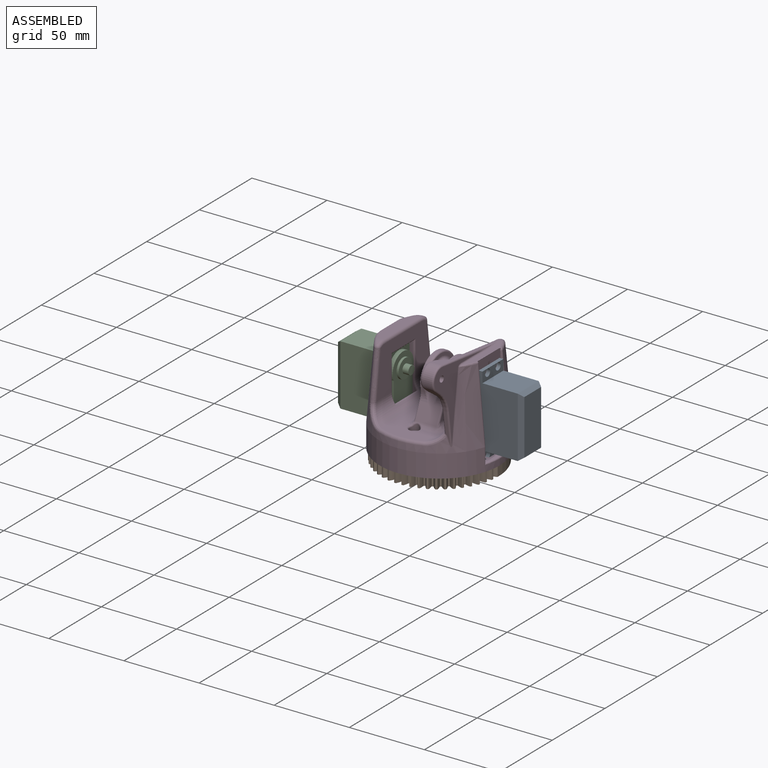
[diagram: assembled view]
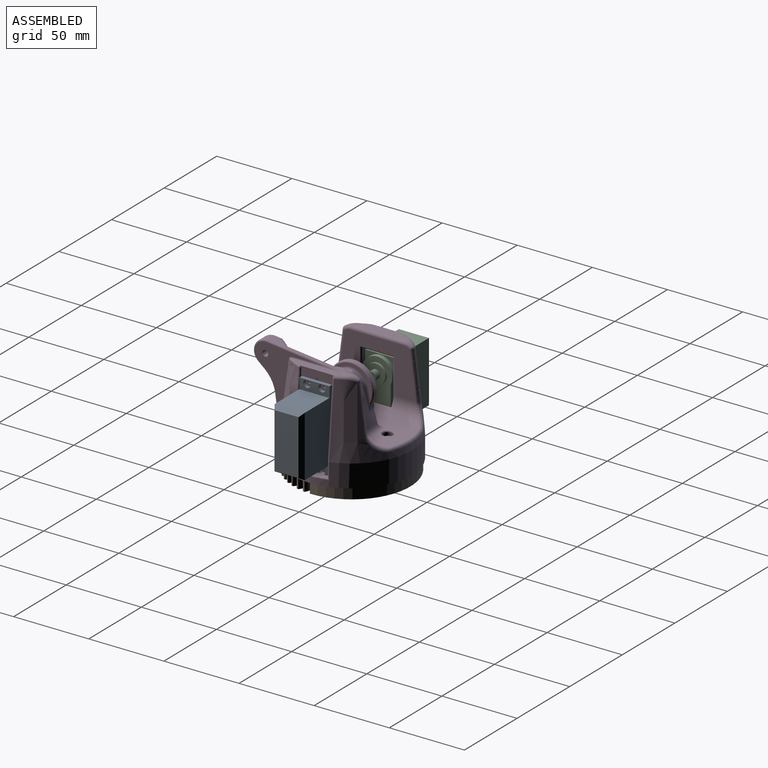
[diagram: assembled view, second angle]
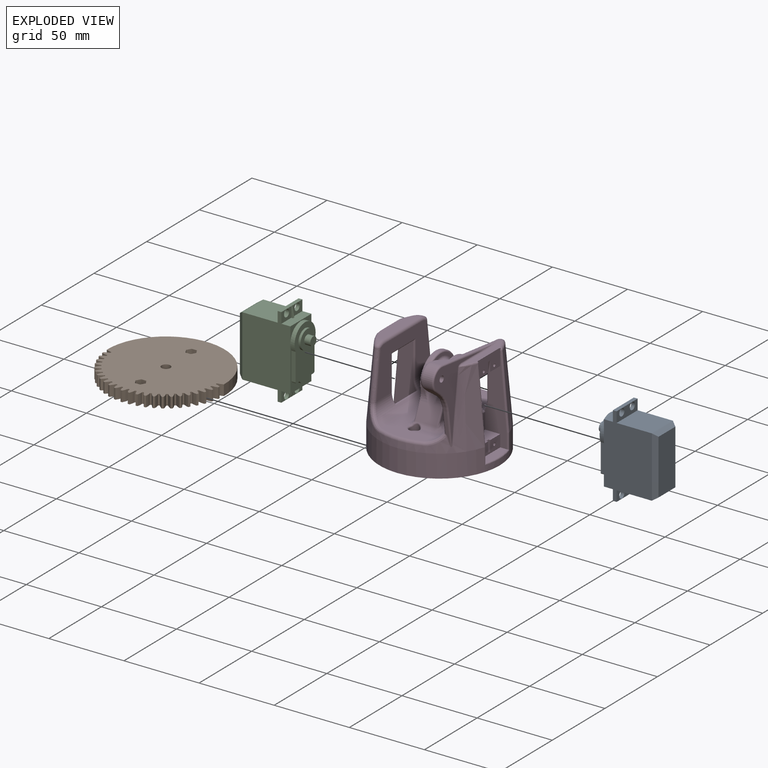
[diagram: exploded view]
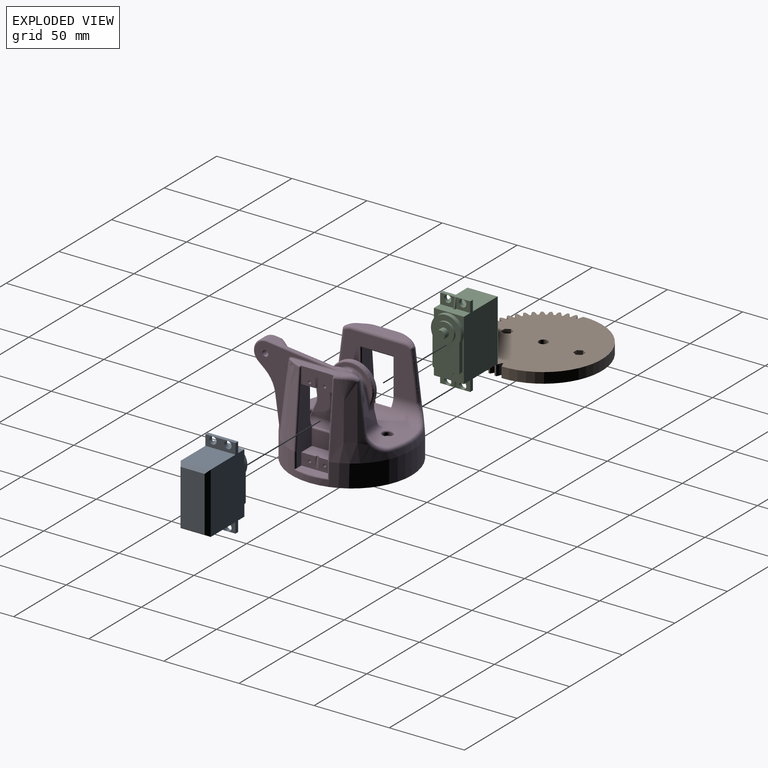
[diagram: exploded view, second angle]
ASSEMBLY  parts=3 mates=2
PART A: 44 faces, bbox 54.5x20x43.3 mm
  f0: plane 54.5x32mm, normal (0,1,0), area 1331mm2, adj f1,f3,f7,f9,f17,f19,f20,f22
  f1: plane 23.5x20mm, normal (1,0,0), area 470mm2, adj f0,f2,f5,f9
  f2: plane 54.5x32mm, normal (0,-1,0), area 1331mm2, adj f1,f3,f6,f9,f17,f19,f20,f21
  f3: plane 23.5x20mm, normal (-1,0,0), area 470mm2, adj f0,f2,f8,f24
  f4: plane 36.5x16mm, normal (0,0,-1), area 584mm2, adj f5,f6,f7,f8
  f5: plane 20x3mm, normal (0.83,0,-0.55), area 64.9mm2, adj f1,f4,f6,f7
  f6: plane 40.5x3mm, normal (0,-0.83,-0.55), area 138.8mm2, adj f2,f4,f5,f8
  f7: plane 40.5x3mm, normal (0,0.83,-0.55), area 138.8mm2, adj f0,f4,f5,f8
  f8: plane 20x3mm, normal (-0.83,0,-0.55), area 64.9mm2, adj f3,f4,f6,f7
  f9: plane 20x7mm, normal (0,0,-1), area 103.8mm2, adj f0,f1,f2,f12,f15,f26
  f10: cylinder r=6.4mm len=12.8mm, axis (0,0,-1), area 60.3mm2, adj f16,f41
  f11: cylinder r=10mm len=20mm, axis (0,0,-1), area 113.9mm2, adj f16,f17,f19,f35,f36
  f12: cylinder r=2.4mm len=4.8mm, axis (0,0,1), area 37.7mm2, adj f9,f23
  f13: cylinder r=2.4mm len=4.8mm, axis (0,0,1), area 37.7mm2, adj f21,f24
  f14: cylinder r=2.4mm len=4.8mm, axis (0,0,1), area 37.7mm2, adj f24,f27
  f15: cylinder r=2.4mm len=4.8mm, axis (0,0,1), area 37.7mm2, adj f9,f25
  f16: plane 33.73x20mm, normal (0,0,1), area 459.1mm2, adj f10,f11,f18,f35,f36,f39,f40
  f17: plane 30x20mm, normal (0,0,1), area 149.4mm2, adj f0,f2,f11,f18,f20,f35,f36,f37
  f18: plane 15.9x2.8mm, normal (-1,0,0), area 23mm2, adj f16,f17,f37,f38,f39,f40
  f19: plane 20x10.5mm, normal (0,0,1), area 52.9mm2, adj f0,f2,f11,f22
  f20: plane 20x6mm, normal (-1,0,0), area 118.6mm2, adj f0,f2,f17,f21,f27,f32,f33,f34
  f21: plane 9.4x7mm, normal (0,0,1), area 47.7mm2, adj f2,f13,f20,f28,f33
  f22: plane 20x6mm, normal (1,0,0), area 118.6mm2, adj f0,f2,f19,f23,f25,f29,f30,f31
  f23: plane 9.4x7mm, normal (0,0,1), area 47.7mm2, adj f2,f12,f22,f26,f30
  f24: plane 20x7mm, normal (0,0,-1), area 103.8mm2, adj f0,f2,f3,f13,f14,f28
  f25: plane 9.4x7mm, normal (0,0,1), area 47.7mm2, adj f0,f15,f22,f26,f31
  f26: plane 20x2.5mm, normal (1,0,0), area 50mm2, adj f0,f2,f9,f23,f25,f29
  f27: plane 9.4x7mm, normal (0,0,1), area 47.7mm2, adj f0,f14,f20,f28,f34
  f28: plane 20x2.5mm, normal (-1,0,0), area 50mm2, adj f0,f2,f21,f24,f27,f32
  f29: plane 7x1.2mm, normal (0.17,0,0.99), area 8.5mm2, adj f22,f26,f30,f31
  f30: plane 7x1.2mm, normal (0,-1,0), area 4.2mm2, adj f22,f23,f29
  f31: plane 7x1.2mm, normal (0,1,0), area 4.2mm2, adj f22,f25,f29
  f32: plane 7x1.2mm, normal (-0.17,0,0.99), area 8.5mm2, adj f20,f28,f33,f34
  f33: plane 7x1.2mm, normal (0,-1,0), area 4.2mm2, adj f20,f21,f32
  f34: plane 7x1.2mm, normal (0,1,0), area 4.2mm2, adj f20,f27,f32
  f35: plane 18.27x2.8mm, normal (0,-1,0), area 51.2mm2, adj f11,f16,f17,f40
  f36: plane 18.27x2.8mm, normal (0,1,0), area 51.2mm2, adj f11,f16,f17,f39
  f37: cylinder r=5.18mm len=9.37mm, axis (0,0,-1), area 26.9mm2, adj f17,f18,f38
  f38: plane 9.37x2.97mm, normal (0,0,1), area 20mm2, adj f18,f37
  f39: cylinder r=1mm len=2.8mm, axis (0,0,1), area 4.4mm2, adj f16,f17,f18,f36
  f40: cylinder r=1mm len=2.8mm, axis (0,0,1), area 4.4mm2, adj f16,f17,f18,f35
  f41: plane 12.8x12.8mm, normal (0,0,1), area 101.6mm2, adj f10,f42
  f42: cylinder r=2.94mm len=5.87mm, axis (0,0,-1), area 73.8mm2, adj f41,f43
  f43: plane 5.87x5.87mm, normal (0,0,1), area 27.1mm2, adj f42
PART B: same geometry as A
PART C: 221 faces, bbox 87.7x90.7x74.5 mm
  f0: plane 24.42x12.13mm, normal (1,0,0), area 213mm2, adj f1,f20,f25,f26,f80,f109,f117,f119
  f1: plane 21x8mm, normal (0,0,-1), area 165.8mm2, adj f0,f25,f26,f204,f212,f213,f214
  f2: plane 24.54x12.13mm, normal (-1,0,0), area 213mm2, adj f3,f13,f28,f29,f70,f78,f129,f131
  f3: plane 21x8mm, normal (0,0,-1), area 165.8mm2, adj f2,f28,f29,f199,f209,f210,f211
  f4: cylinder r=4mm len=14mm, axis (-1,0,0), area 44.2mm2, adj f5,f8,f12,f165,f193
  f5: bspline ~5.52x5mm, area 19.9mm2, adj f4,f12,f159,f168,f195
  f6: cylinder r=10mm len=18.72mm, axis (1,0,0), area 97.7mm2, adj f7,f8,f140,f143
  f7: plane 21.62x14mm, normal (0,0.97,0.26), area 163.4mm2, adj f6,f135,f137,f141,f142,f155,f160,f172
  f8: plane 23.92x14mm, normal (0,-0.91,0.42), area 219.4mm2, adj f4,f6,f136,f138,f139,f144,f159,f164
  f9: plane 21x8mm, normal (-1,0,0), area 149.5mm2, adj f28,f29,f30,f31,f125,f127,f215,f216
  f10: plane 21x8mm, normal (1,0,0), area 149.5mm2, adj f23,f24,f25,f26,f121,f123,f218,f219
  f11: plane 80x80mm, normal (0,0,-1), area 4922.8mm2, adj f18,f100,f101,f102,f103,f104,f105,f187
  f12: plane 75.29x28mm, normal (0,0,1), area 1077.2mm2, adj f4,f5,f19,f21,f50,f54,f165,f168
  f13: plane 34.87x7mm, normal (0,0,1), area 209.4mm2, adj f2,f44,f45,f70,f74,f78
  f14: cone r=35.63mm half-angle=5deg, axis (0,0,-1), area 1956.8mm2, adj f18,f48,f49,f50,f51,f52,f77,f78
  f15: plane 51.5x32mm, normal (1,0,0), area 961.5mm2, adj f19,f48,f56,f73,f74,f75,f197,f199
  f16: plane 59.37x40.07mm, normal (-1,0,0), area 1210.4mm2, adj f21,f52,f57,f58,f59,f86,f87,f88
  f17: cone r=35.63mm half-angle=5deg, axis (0,0,-1), area 1902.3mm2, adj f18,f34,f35,f53,f54,f55,f56,f62
  f18: cylinder r=40mm len=80mm, axis (0,0,1), area 3243.1mm2, adj f11,f14,f17,f175,f176,f177,f182,f183
  f19: cylinder r=10mm len=69.88mm, axis (0,1,0), area 779.3mm2, adj f12,f15,f49,f55,f198,f200,f202
  f20: plane 36.51x7mm, normal (0,0,1), area 123.2mm2, adj f0,f43,f80,f88,f109,f111,f112,f113
  f21: cylinder r=10mm len=69.88mm, axis (0,-1,0), area 585.3mm2, adj f12,f16,f51,f53,f166,f167,f169,f205
  f22: plane 21x10.45mm, normal (1,0,0), area 219.5mm2, adj f23,f25,f26,f207
  f23: plane 21x10mm, normal (0,0,1), area 207.8mm2, adj f10,f22,f25,f26,f218,f219,f220
  f24: plane 21.08x6mm, normal (0,0,1), area 116mm2, adj f10,f25,f26,f175,f176,f177
  f25: plane 56.29x14.61mm, normal (0,-1,0), area 497.1mm2, adj f0,f1,f10,f22,f23,f24,f174,f175
  f26: plane 56.29x14.61mm, normal (0,1,0), area 497.1mm2, adj f0,f1,f10,f22,f23,f24,f177,f178
  f27: plane 21x10.45mm, normal (-1,0,0), area 219.5mm2, adj f28,f29,f31,f200
  f28: plane 56.29x14.61mm, normal (0,-1,0), area 497.1mm2, adj f2,f3,f9,f27,f30,f31,f184,f185
  f29: plane 56.29x14.61mm, normal (0,1,0), area 497.1mm2, adj f2,f3,f9,f27,f30,f31,f181,f182
  f30: plane 21.08x6mm, normal (0,0,1), area 116mm2, adj f9,f28,f29,f182,f183,f184
  f31: plane 21x10mm, normal (0,0,1), area 207.8mm2, adj f9,f27,f28,f29,f215,f216,f217
  f32: cylinder r=8mm len=14.13mm, axis (-1,0,0), area 128.9mm2, adj f33,f37,f68,f81
  f33: plane 53.82x6.3mm, normal (0,0.11,0.99), area 94.8mm2, adj f32,f69,f83,f85,f87,f113
  f34: plane 0.33x0.26mm, normal (0,0,-1), area 0mm2, adj f17,f35,f62
  f35: plane 2.36x0.28mm, normal (0,1,0), area 0.1mm2, adj f17,f34,f62
  f36: plane 19.35x2.72mm, normal (0,-0.99,-0.14), area 33.1mm2, adj f39,f59,f61,f63,f65
  f37: plane 6.3x4.32mm, normal (0,-0.64,-0.77), area 34.7mm2, adj f32,f39,f67,f79,f92
  f38: plane 48.42x44.17mm, normal (1,0,0), area 487.1mm2, adj f41,f62,f65,f66,f67,f68,f69,f110
  f39: cylinder r=20mm len=12.54mm, axis (1,0,0), area 35.1mm2, adj f36,f37,f57,f66,f93
  f40: plane 13.17x13.17mm, normal (-1,0,0), area 123mm2, adj f41,f79,f81,f83,f90
  f41: cylinder r=2mm len=9.3mm, axis (-1,0,0), area 116.9mm2, adj f38,f40
  f42: cone r=8mm half-angle=45deg, axis (1,0,0), area 100.4mm2, adj f85,f90,f92,f93,f95,f96,f97
  f43: cylinder r=10mm len=5.41mm, axis (1,0,0), area 8.4mm2, adj f20,f82,f86
  f44: cylinder r=10mm len=5.41mm, axis (1,0,0), area 8.4mm2, adj f13,f75,f77
  f45: cylinder r=10mm len=5.41mm, axis (1,0,0), area 8.4mm2, adj f13,f71,f73
  f46: plane 32.46x32mm, normal (-1,0,0), area 800.3mm2, adj f99,f155,f156,f157,f158,f159,f168
  f47: plane 31.95x31.2mm, normal (1,0,0), area 774.4mm2, adj f99,f160,f161,f162,f163,f164,f167
  f48: bspline ~59.2x11.96mm, area 148.6mm2, adj f14,f15,f49,f76
  f49: bspline ~15.48x14.06mm, area 74.4mm2, adj f14,f19,f48,f50
  f50: torus R=37.64mm, axis (0,0,-1), area 87.9mm2, adj f12,f14,f49,f51
  f51: bspline ~15.48x14.06mm, area 74.4mm2, adj f14,f21,f50,f52
  f52: bspline ~59.2x11.96mm, area 148.6mm2, adj f14,f16,f51,f84
  f53: bspline ~13.99x13.06mm, area 52.4mm2, adj f17,f21,f54,f58,f60,f61
  f54: torus R=37.64mm, axis (0,0,-1), area 87.9mm2, adj f12,f17,f53,f55
  f55: bspline ~15.48x14.06mm, area 74.4mm2, adj f17,f19,f54,f56
  f56: bspline ~59.2x11.96mm, area 148.6mm2, adj f15,f17,f55,f72
  f57: torus R=21mm, axis (-1,0,0), area 14.2mm2, adj f16,f39,f59,f97,f98
  f58: bspline ~4.53x3.87mm, area 1.4mm2, adj f16,f53,f60
  f59: cylinder r=1mm len=14.9mm, axis (0,-0.14,0.99), area 22.3mm2, adj f16,f36,f57,f60
  f60: bspline ~2.34x1.6mm, area 1.9mm2, adj f53,f58,f59,f61
  f61: bspline ~1.82x1.54mm, area 0.9mm2, adj f36,f53,f60,f63
  f62: bspline ~54.9x7.91mm, area 30.5mm2, adj f17,f34,f35,f38,f64,f110
  f63: bspline ~3.57x1.63mm, area 2.6mm2, adj f17,f36,f61,f64
  f64: bspline ~4.58x2.21mm, area 3.3mm2, adj f17,f62,f63,f65
  f65: cylinder r=1mm len=22.38mm, axis (0,0.14,-0.99), area 33.7mm2, adj f36,f38,f64,f66
  f66: torus R=21mm, axis (-1,0,0), area 23.4mm2, adj f38,f39,f65,f67
  f67: cylinder r=1mm len=4.97mm, axis (0,0.77,-0.64), area 8.9mm2, adj f37,f38,f66,f68
  f68: torus R=7mm, axis (-1,0,0), area 30.7mm2, adj f32,f38,f67,f69
  f69: cylinder r=1mm len=53.93mm, axis (0,-0.99,0.11), area 75.1mm2, adj f33,f38,f68,f112
  f70: torus R=33.79mm, axis (0,0,1), area 23.8mm2, adj f2,f13,f17,f71,f180
  f71: bspline ~8x5.82mm, area 16.3mm2, adj f17,f45,f70,f72
  f72: sphere r=2mm, area 8.1mm2, adj f56,f71,f73
  f73: torus R=8mm, axis (-1,0,0), area 16.6mm2, adj f15,f45,f72,f74
  f74: cylinder r=2mm len=34.87mm, axis (0,1,0), area 109.5mm2, adj f13,f15,f73,f75
  f75: torus R=8mm, axis (-1,0,0), area 16.6mm2, adj f15,f44,f74,f76
  f76: sphere r=2mm, area 8.1mm2, adj f48,f75,f77
  f77: bspline ~8x5.82mm, area 16.3mm2, adj f14,f44,f76,f78
  f78: torus R=33.79mm, axis (0,0,1), area 23.8mm2, adj f2,f13,f14,f77,f186
  f79: cylinder r=2mm len=4.3mm, axis (0,-0.77,0.64), area 12.3mm2, adj f37,f40,f81,f91
  f80: torus R=33.79mm, axis (0,0,1), area 23.8mm2, adj f0,f14,f20,f82,f173
  f81: torus R=6mm, axis (-1,0,0), area 58.4mm2, adj f32,f40,f79,f83
  f82: bspline ~8x5.82mm, area 16.3mm2, adj f14,f43,f80,f84
  f83: cylinder r=2mm len=4.13mm, axis (0,0.99,-0.11), area 12.3mm2, adj f33,f40,f81,f89
  f84: sphere r=2mm, area 8.1mm2, adj f52,f82,f86
  f85: bspline ~10.3x8.46mm, area 17mm2, adj f33,f42,f89,f94
  f86: torus R=8mm, axis (-1,0,0), area 16.6mm2, adj f16,f43,f84,f88
  f87: cylinder r=2mm len=43.35mm, axis (0,0.99,-0.11), area 131.1mm2, adj f16,f33,f94,f95,f114
  f88: cylinder r=2mm len=2mm, axis (0,-1,0), area 2mm2, adj f16,f20,f86,f114
  f89: sphere r=2mm, area 2mm2, adj f83,f85,f90
  f90: torus R=7.17mm, axis (-1,0,0), area 31.9mm2, adj f40,f42,f89,f91
  f91: sphere r=2mm, area 1.3mm2, adj f79,f90,f92
  f92: bspline ~4.78x4.11mm, area 4.2mm2, adj f37,f42,f91,f93
  f93: bspline ~6.51x5.98mm, area 9.9mm2, adj f39,f42,f92,f98
  f94: bspline ~3.13x3.11mm, area 3.1mm2, adj f85,f87,f95
  f95: bspline ~4.05x3.67mm, area 5.7mm2, adj f42,f87,f94,f96
  f96: torus R=15.37mm, axis (-1,0,0), area 82.6mm2, adj f16,f42,f95,f97
  f97: bspline ~3.78x2.76mm, area 1.6mm2, adj f42,f57,f96,f98
  f98: bspline ~3.08x2.77mm, area 3.2mm2, adj f57,f93,f97
  f99: cylinder r=2mm len=16mm, axis (-1,0,0), area 201.1mm2, adj f46,f47
  f100: plane 8.5x5mm, normal (0.5,-0.87,0), area 49.1mm2, adj f11,f101,f105,f106
  f101: plane 8.5x5mm, normal (-0.5,-0.87,0), area 49.1mm2, adj f11,f100,f102,f106
  f102: plane 8.5x5.77mm, normal (-1,0,0), area 49.1mm2, adj f11,f101,f103,f106
  f103: plane 8.5x5mm, normal (-0.5,0.87,0), area 49.1mm2, adj f11,f102,f104,f106
  f104: plane 8.5x5mm, normal (0.5,0.87,0), area 49.1mm2, adj f11,f103,f105,f106
  f105: plane 8.5x5.77mm, normal (1,0,0), area 49.1mm2, adj f11,f100,f104,f106
  f106: plane 11.55x10mm, normal (0,0,-1), area 53.4mm2, adj f100,f101,f102,f103,f104,f105,f107
  f107: cylinder r=3.25mm len=11.5mm, axis (0,0,-1), area 234.8mm2, adj f106,f108
  f108: plane 6.5x6.5mm, normal (0,0,-1), area 33.2mm2, adj f107
  f109: torus R=34.71mm, axis (0,0,1), area 14.9mm2, adj f0,f17,f20,f110,f179
  f110: bspline ~3.91x2.16mm, area 3.9mm2, adj f38,f62,f109,f111
  f111: cylinder r=1mm len=18.27mm, axis (0,-1,0), area 28.7mm2, adj f20,f38,f110,f112
  f112: bspline ~19.25x2.19mm, area 17.8mm2, adj f20,f69,f111,f113
  f113: cylinder r=1mm len=1mm, axis (1,0,0), area 0.1mm2, adj f20,f33,f112,f114
  f114: bspline ~2.26x2.01mm, area 0.1mm2, adj f87,f88,f113
  f115: cylinder r=15mm len=30mm, axis (-1,0,0), area 112.1mm2, adj f137,f138,f146,f147,f148,f157
  f116: plane 28x17.86mm, normal (1,0,0), area 83.1mm2, adj f139,f140,f141,f147
  f117: cylinder r=1mm len=5mm, axis (1,0,0), area 31.4mm2, adj f0,f118
  f118: plane 2x2mm, normal (1,0,0), area 3.1mm2, adj f117
  f119: cylinder r=1mm len=5mm, axis (1,0,0), area 31.4mm2, adj f0,f120
  f120: plane 2x2mm, normal (1,0,0), area 3.1mm2, adj f119
  f121: cylinder r=1mm len=5mm, axis (1,0,0), area 31.4mm2, adj f10,f122
  f122: plane 2x2mm, normal (1,0,0), area 3.1mm2, adj f121
  f123: cylinder r=1mm len=5mm, axis (1,0,0), area 31.4mm2, adj f10,f124
  f124: plane 2x2mm, normal (1,0,0), area 3.1mm2, adj f123
  f125: cylinder r=1mm len=5mm, axis (-1,0,0), area 31.4mm2, adj f9,f126
  f126: plane 2x2mm, normal (-1,0,0), area 3.1mm2, adj f125
  f127: cylinder r=1mm len=5mm, axis (-1,0,0), area 31.4mm2, adj f9,f128
  f128: plane 2x2mm, normal (-1,0,0), area 3.1mm2, adj f127
  f129: cylinder r=1mm len=5mm, axis (-1,0,0), area 31.4mm2, adj f2,f130
  f130: plane 2x2mm, normal (-1,0,0), area 3.1mm2, adj f129
  f131: cylinder r=1mm len=5mm, axis (-1,0,0), area 31.4mm2, adj f2,f132
  f132: plane 2x2mm, normal (-1,0,0), area 3.1mm2, adj f131
  f133: cylinder r=15mm len=30mm, axis (1,0,0), area 112.1mm2, adj f135,f136,f151,f152,f153,f162
  f134: plane 28x17.86mm, normal (-1,0,0), area 83.1mm2, adj f142,f143,f144,f152
  f135: cylinder r=10mm len=6.31mm, axis (1,0,0), area 22.9mm2, adj f7,f133,f150,f161
  f136: cylinder r=10mm len=6.28mm, axis (1,0,0), area 22.9mm2, adj f8,f133,f154,f163
  f137: cylinder r=10mm len=6.31mm, axis (-1,0,0), area 22.9mm2, adj f7,f115,f145,f156
  f138: cylinder r=10mm len=6.28mm, axis (-1,0,0), area 22.9mm2, adj f8,f115,f149,f158
  f139: cylinder r=2mm len=14.44mm, axis (0,-0.42,-0.91), area 34.7mm2, adj f8,f116,f140,f148,f149
  f140: torus R=12mm, axis (-1,0,0), area 82.3mm2, adj f6,f116,f139,f141
  f141: cylinder r=2mm len=15.01mm, axis (0,-0.26,0.97), area 34.7mm2, adj f7,f116,f140,f145,f146
  f142: cylinder r=2mm len=15.01mm, axis (0,0.26,-0.97), area 34.7mm2, adj f7,f134,f143,f150,f151
  f143: torus R=12mm, axis (1,0,0), area 82.3mm2, adj f6,f134,f142,f144
  f144: cylinder r=2mm len=14.44mm, axis (0,0.42,0.91), area 34.7mm2, adj f8,f134,f143,f153,f154
  f145: bspline ~7.08x2.95mm, area 3.1mm2, adj f137,f141,f146
  f146: bspline ~2.64x1.39mm, area 2.1mm2, adj f115,f141,f145,f147
  f147: torus R=14mm, axis (-1,0,0), area 81.1mm2, adj f115,f116,f146,f148
  f148: bspline ~3.55x1.25mm, area 2.1mm2, adj f115,f139,f147,f149
  f149: bspline ~6.93x2.95mm, area 3.1mm2, adj f138,f139,f148
  f150: bspline ~7.08x2.95mm, area 3.1mm2, adj f135,f142,f151
  f151: bspline ~2.64x1.39mm, area 2.1mm2, adj f133,f142,f150,f152
  f152: torus R=14mm, axis (1,0,0), area 81.1mm2, adj f133,f134,f151,f153
  f153: bspline ~3.55x1.25mm, area 2.1mm2, adj f133,f144,f152,f154
  f154: bspline ~6.93x2.95mm, area 3.1mm2, adj f136,f144,f153
  f155: cylinder r=1mm len=7.39mm, axis (0,0.26,-0.97), area 10.6mm2, adj f7,f46,f156,f170
  f156: torus R=11mm, axis (1,0,0), area 10.5mm2, adj f46,f137,f155,f157
  f157: torus R=14mm, axis (1,0,0), area 85.8mm2, adj f46,f115,f156,f158
  f158: torus R=11mm, axis (1,0,0), area 10.5mm2, adj f46,f138,f157,f159
  f159: cylinder r=1mm len=10.74mm, axis (0,0.42,0.91), area 16.1mm2, adj f5,f8,f46,f158
  f160: cylinder r=1mm len=7.39mm, axis (0,-0.26,0.97), area 10.3mm2, adj f7,f47,f161,f169,f171
  f161: torus R=11mm, axis (1,0,0), area 10.5mm2, adj f47,f135,f160,f162
  f162: torus R=14mm, axis (1,0,0), area 85.8mm2, adj f47,f133,f161,f163
  f163: torus R=11mm, axis (1,0,0), area 10.5mm2, adj f47,f136,f162,f164
  f164: cylinder r=1mm len=10.74mm, axis (0,-0.42,-0.91), area 15.9mm2, adj f8,f47,f163,f165,f166
  f165: bspline ~3.92x2.69mm, area 5.3mm2, adj f4,f12,f164,f166
  f166: bspline ~7.32x6.67mm, area 29.6mm2, adj f21,f164,f165,f167
  f167: cylinder r=4mm len=31.87mm, axis (0,-1,0), area 267mm2, adj f21,f47,f166,f169
  f168: cylinder r=4mm len=32.46mm, axis (0,1,0), area 204mm2, adj f5,f12,f46,f170
  f169: bspline ~7.1x6.65mm, area 27mm2, adj f21,f160,f167,f171
  f170: bspline ~5.18x5mm, area 24mm2, adj f12,f155,f168,f172
  f171: bspline ~3.97x3.05mm, area 5.8mm2, adj f12,f160,f169,f172
  f172: cylinder r=4mm len=14mm, axis (-1,0,0), area 73.3mm2, adj f7,f12,f170,f171
  f173: bspline ~2.01x1.96mm, area 1.4mm2, adj f0,f80,f174
  f174: bspline ~70.67x7.82mm, area 91.1mm2, adj f0,f14,f25,f173,f175
  f175: cylinder r=1mm len=11mm, axis (0,0,1), area 19.3mm2, adj f14,f18,f24,f25,f174,f176
  f176: torus R=39mm, axis (0,0,-1), area 35.7mm2, adj f18,f24,f175,f177
  f177: cylinder r=1mm len=11mm, axis (0,0,1), area 19.3mm2, adj f17,f18,f24,f26,f176,f178
  f178: bspline ~70.51x7.81mm, area 92.7mm2, adj f0,f17,f26,f177,f179
  f179: sphere r=1mm, area 1.4mm2, adj f0,f109,f178
  f180: bspline ~1.94x1.89mm, area 1.4mm2, adj f2,f70,f181
  f181: bspline ~70.67x7.82mm, area 91.1mm2, adj f2,f17,f29,f180,f182
  f182: cylinder r=1mm len=11mm, axis (0,0,1), area 19.3mm2, adj f17,f18,f29,f30,f181,f183
  f183: torus R=39mm, axis (0,0,1), area 35.7mm2, adj f18,f30,f182,f184
  f184: cylinder r=1mm len=11mm, axis (0,0,1), area 19.3mm2, adj f14,f18,f28,f30,f183,f185
  f185: bspline ~70.67x7.82mm, area 91.1mm2, adj f2,f14,f28,f184,f186
  f186: bspline ~2.22x1.96mm, area 1.4mm2, adj f2,f78,f185
  f187: cylinder r=1.65mm len=18mm, axis (0,0,1), area 186.6mm2, adj f11,f188
  f188: plane 6.5x6.5mm, normal (0,0,1), area 24.6mm2, adj f187,f189
  f189: cylinder r=3.25mm len=6.5mm, axis (0,0,1), area 40.8mm2, adj f188,f196
  f190: cylinder r=1.65mm len=18mm, axis (0,0,1), area 186.6mm2, adj f11,f191
  f191: plane 6.5x6.5mm, normal (0,0,1), area 24.6mm2, adj f190,f192
  f192: cylinder r=3.25mm len=6.5mm, axis (0,0,1), area 50.4mm2, adj f191,f193,f194,f195
  f193: bspline ~7.1x3.92mm, area 7.5mm2, adj f4,f192,f194,f195
  f194: torus R=4.25mm, axis (0,0,-1), area 19mm2, adj f12,f192,f193,f195
  f195: bspline ~3.21x2.81mm, area 4.8mm2, adj f5,f192,f193,f194
  f196: torus R=4.25mm, axis (0,0,-1), area 35.7mm2, adj f12,f189
  f197: cylinder r=1mm len=24mm, axis (0,0,1), area 36.9mm2, adj f15,f29,f198,f199
  f198: torus R=11mm, axis (0,-1,0), area 11.3mm2, adj f19,f29,f197,f200
  f199: cylinder r=1mm len=23mm, axis (0,1,0), area 34.6mm2, adj f3,f15,f197,f201
  f200: cylinder r=1mm len=23mm, axis (0,1,0), area 51.6mm2, adj f19,f27,f28,f29,f198,f202
  f201: cylinder r=1mm len=24mm, axis (0,0,-1), area 36.9mm2, adj f15,f28,f199,f202
  f202: torus R=11mm, axis (0,-1,0), area 11.3mm2, adj f19,f28,f200,f201
  f203: cylinder r=1mm len=24mm, axis (0,0,1), area 36.9mm2, adj f16,f25,f204,f205
  f204: cylinder r=1mm len=23mm, axis (0,-1,0), area 34.6mm2, adj f1,f16,f203,f206
  f205: torus R=11mm, axis (0,-1,0), area 11.3mm2, adj f21,f25,f203,f207
  f206: cylinder r=1mm len=24mm, axis (0,0,-1), area 36.9mm2, adj f16,f26,f204,f208
  f207: cylinder r=1mm len=23mm, axis (0,-1,0), area 51.6mm2, adj f21,f22,f25,f26,f205,f208
  f208: torus R=11mm, axis (0,-1,0), area 11.3mm2, adj f21,f26,f206,f207
  f209: plane 6.81x1.8mm, normal (-0.98,0,-0.17), area 12.4mm2, adj f2,f3,f210,f211
  f210: plane 6.81x1.2mm, normal (0,-1,0), area 4.1mm2, adj f2,f3,f209
  f211: plane 6.81x1.2mm, normal (0,1,0), area 4.1mm2, adj f2,f3,f209
  f212: plane 6.81x1.8mm, normal (0.98,0,-0.17), area 12.4mm2, adj f0,f1,f213,f214
  f213: plane 6.81x1.2mm, normal (0,-1,0), area 4.1mm2, adj f0,f1,f212
  f214: plane 6.81x1.2mm, normal (0,1,0), area 4.1mm2, adj f0,f1,f212
  f215: plane 6.81x1.8mm, normal (-0.98,0,0.17), area 12.4mm2, adj f9,f31,f216,f217
  f216: plane 6.81x1.2mm, normal (0,-1,0), area 4.1mm2, adj f9,f31,f215
  f217: plane 6.81x1.2mm, normal (0,1,0), area 4.1mm2, adj f9,f31,f215
  f218: plane 6.81x1.8mm, normal (0.98,0,0.17), area 12.4mm2, adj f10,f23,f219,f220
  f219: plane 6.81x1.2mm, normal (0,-1,0), area 4.1mm2, adj f10,f23,f218
  f220: plane 6.81x1.2mm, normal (0,1,0), area 4.1mm2, adj f10,f23,f218
PLACE A rot(axis=(0,-1,0),90deg) t=(55.5,0,31.8)mm
PLACE B rot(axis=(0.71,0,0.71),180deg) t=(-55.5,0,31.8)mm
PLACE C at identity fixed
MATE fastened C.f119 <-> B.f15  axis (-1,0,0) through (-33,-5,56.5)mm
MATE fastened C.f117 <-> A.f15  axis (1,0,0) through (33,5,56.5)mm
